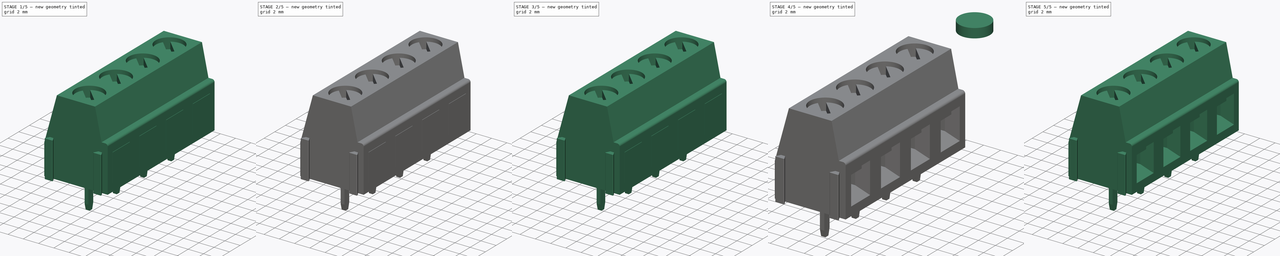
[diagram: build sequence overview — one tinted view per stage of 5, left to right]
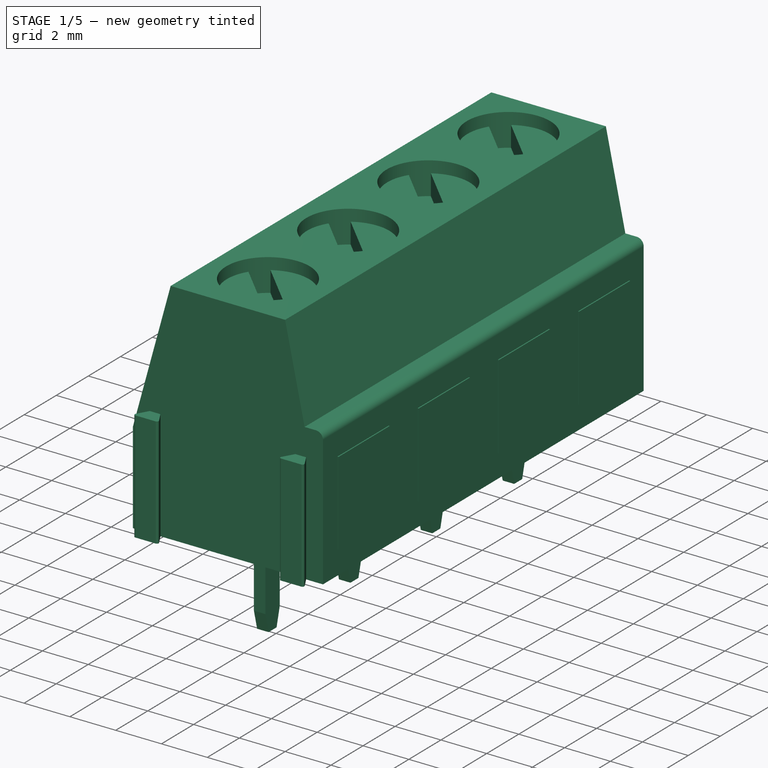
[diagram: stage 1 of 5 — iso view after this stage's code; geometry added in this stage tinted green]
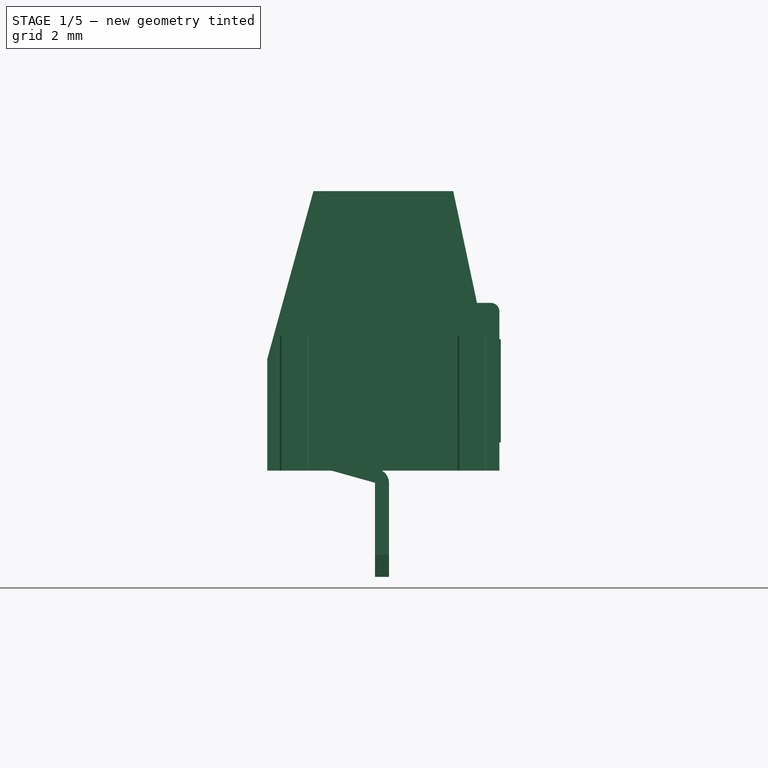
[diagram: stage 1 of 5 — front view after this stage's code; geometry added in this stage tinted green]
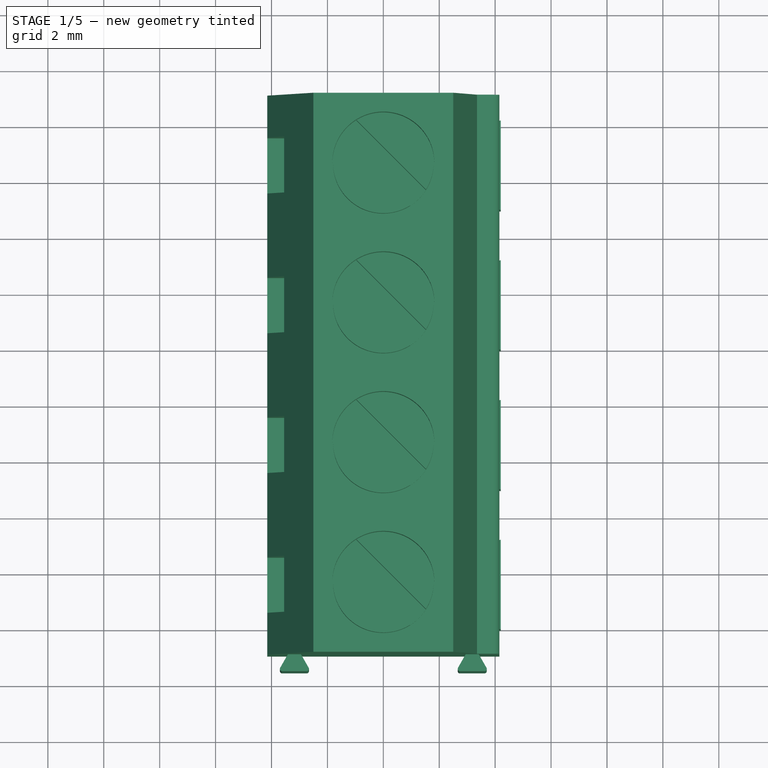
[diagram: stage 1 of 5 — top view after this stage's code; geometry added in this stage tinted green]
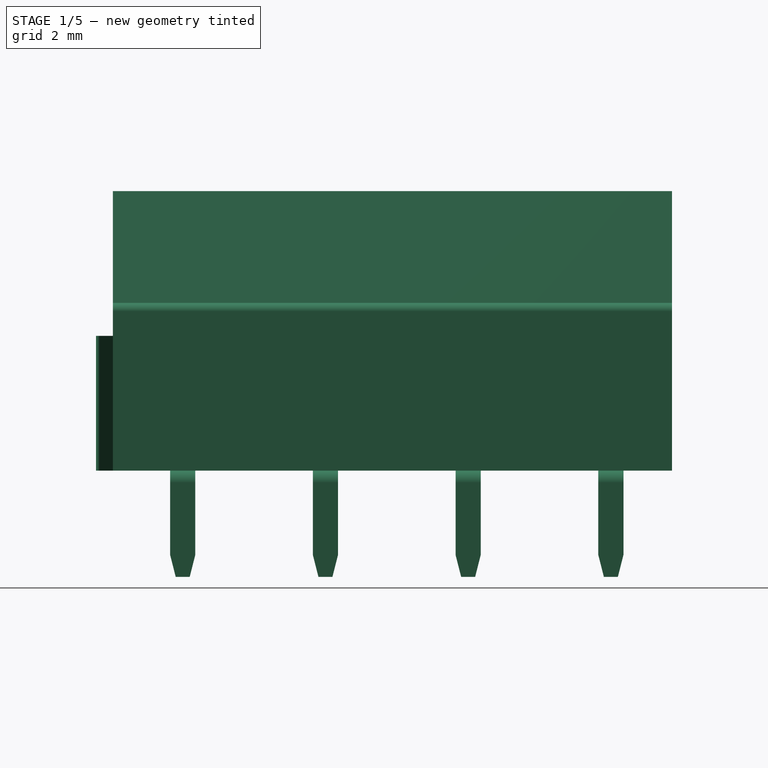
[diagram: stage 1 of 5 — right view after this stage's code; geometry added in this stage tinted green]
FCSTD DOCUMENT  (FreeCAD 0.15R4671 (Git))
Label: pcb-terminal-block-female-1x4
License: All rights reserved
LicenseURL: http://es.wikipedia.org/wiki/Todos_los_derechos_reservados
objects: Sketcher::SketchObject×13, PartDesign::Pad×6, PartDesign::Pocket×5, PartDesign::LinearPattern×3, Part::FeaturePython×3, Part::Feature×3, PartDesign::Mirrored×2, Part::Loft×1, Part::MultiFuse×1, Part::Cut×1, App::DocumentObjectGroup×1, Part::Compound×1
note: 50 computed .brp shape members not serialized (recipe doc carries the construction recipe); baked Part::Feature solids carry a one-line shape summary decoded from their .brp

FEATURE [Sketcher::SketchObject] Sketch002  label="inner-cutout-1-sketch"
  Placement = pos=(0,0,0) rot=(0.57735,0.57735,0.57735;2.0944rad)
  sketch-geometry (4):
    g0: LineSegment StartX=-1.25 StartY=0 StartZ=0 EndX=1.25 EndY=0 EndZ=0
    g1: LineSegment StartX=1.25 StartY=0 StartZ=0 EndX=1.25 EndY=-2.9 EndZ=0
    g2: LineSegment StartX=1.25 StartY=-2.9 StartZ=0 EndX=-1.25 EndY=-2.9 EndZ=0
    g3: LineSegment StartX=-1.25 StartY=-2.9 StartZ=0 EndX=-1.25 EndY=0 EndZ=0
  constraints (12):
    c: Coincident(g0,g1)
    c: Coincident(g1,g2)
    c: Coincident(g2,g3)
    c: Coincident(g3,g0)
    c: Horizontal(g0)
    c: Horizontal(g2)
    c: Vertical(g1)
    c: Vertical(g3)
    c: Symmetric(g0,g0,g-2)
    c: DistanceX(g0) = 2.5
    c: DistanceY(g1) = -2.9
    c: PointOnObject(g0,g-1)
FEATURE [Sketcher::SketchObject] Sketch003
  Placement = pos=(0,0,0) rot=(0.57735,0.57735,0.57735;2.0944rad)
  sketch-geometry (4):
    g0: LineSegment StartX=-1.25 StartY=0 StartZ=0 EndX=1.25 EndY=0 EndZ=0
    g1: LineSegment StartX=1.25 StartY=0 StartZ=0 EndX=1.25 EndY=-2.9 EndZ=0
    g2: LineSegment StartX=1.25 StartY=-2.9 StartZ=0 EndX=-1.25 EndY=-2.9 EndZ=0
    g3: LineSegment StartX=-1.25 StartY=-2.9 StartZ=0 EndX=-1.25 EndY=0 EndZ=0
  constraints (12):
    c: Coincident(g0,g1)
    c: Coincident(g1,g2)
    c: Coincident(g2,g3)
    c: Coincident(g3,g0)
    c: Horizontal(g0)
    c: Horizontal(g2)
    c: Vertical(g1)
    c: Vertical(g3)
    c: Symmetric(g0,g0,g-2)
    c: DistanceX(g0) = 2.5
    c: DistanceY(g1) = -2.9
    c: PointOnObject(g0,g-1)
FEATURE [PartDesign::Pad] Pad001  label="inner-cutout-1"
  Length = 4.82
  Length2 = 100
  Placement = pos=(0,0,0) rot=(0.57735,0.57735,0.57735;2.0944rad)
  Reversed = true
  Sketch = -> Sketch002
  Type = 0
FEATURE [Sketcher::SketchObject] Sketch004
  Placement = pos=(1.56,0,0) rot=(0.57735,0.57735,0.57735;2.0944rad)
  sketch-geometry (4):
    g0: LineSegment StartX=-1.6 StartY=0 StartZ=0 EndX=1.6 EndY=0 EndZ=0
    g1: LineSegment StartX=1.6 StartY=0 StartZ=0 EndX=1.6 EndY=-3.7 EndZ=0
    g2: LineSegment StartX=1.6 StartY=-3.7 StartZ=0 EndX=-1.6 EndY=-3.7 EndZ=0
    g3: LineSegment StartX=-1.6 StartY=-3.7 StartZ=0 EndX=-1.6 EndY=0 EndZ=0
  constraints (12):
    c: Coincident(g0,g1)
    c: Coincident(g1,g2)
    c: Coincident(g2,g3)
    c: Coincident(g3,g0)
    c: Horizontal(g0)
    c: Horizontal(g2)
    c: Vertical(g1)
    c: Vertical(g3)
    c: Symmetric(g0,g0,g-2)
    c: DistanceX(g0) = 3.2
    c: DistanceY(g1) = -3.7
    c: PointOnObject(g0,g-1)
FEATURE [Part::Loft] Loft  label="inner-cutout-2"
  Closed = false
  Ruled = false
  Sections = -> [Sketch003,Sketch004]
  Solid = true
FEATURE [Part::MultiFuse] Fusion  label="inner-cutout"
  Placement = pos=(2.63795,-12.4994,4.7) rot=(0,0,1;0rad)
  Shapes = -> [Pad001,Loft]
FEATURE [Part::FeaturePython] Array  label="inner-cutout-array"  # Draft array (typed FeaturePython)
  Angle = 360
  ArrayType = 0
  Axis = (0,0,1)
  Base = -> Fusion
  Center = (0,0,0)
  IntervalX = (1,0,0)
  IntervalY = (0,5,0)
  IntervalZ = (0,0,1)
  NumberPolar = 1
  NumberX = 1
  NumberY = 4
  NumberZ = 1
FEATURE [App::DocumentObjectGroup] Group  label="body-src"
  Group = -> [Pad,Pocket,LinearPattern,Fusion,Pocket001,Mirrored,Pad002,Mirrored001,Sketch007,Pocket002,LinearPattern001,Cut,Pad003,Array001,Pad004,Array002,Pad005,LinearPattern002]
FEATURE [Part::Feature] Array003  label="pins001"
  shape: bbox 2.05 x 16.22 x 3.8 mm, 40 faces, 4 solids (baked)
FEATURE [Part::Feature] Array004  label="screw-caps001"
  shape: bbox 3.6 x 18.6 x 1.1 mm, 28 faces, 4 solids (baked)
FEATURE [Part::Feature] LinearPattern003  label="terminal-body"
  shape: bbox 8.348 x 20.6 x 10 mm, 110 faces (baked)
FEATURE [Part::Compound] Compound  label="pcb-terminal-block-female-1x4"
  Links = -> [Array003,Array004,LinearPattern003]
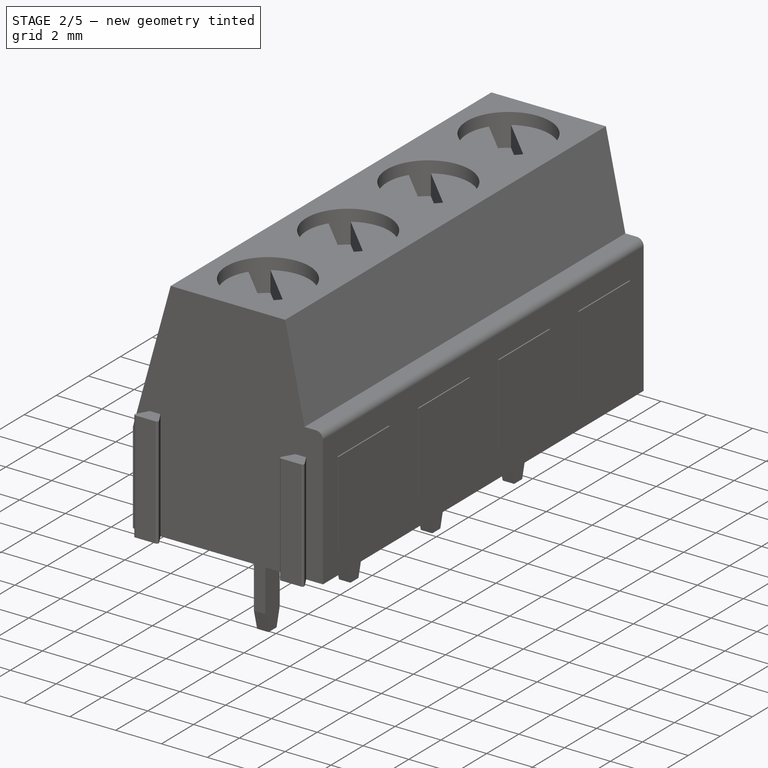
[diagram: stage 2 of 5 — iso view after this stage's code; geometry added in this stage tinted green]
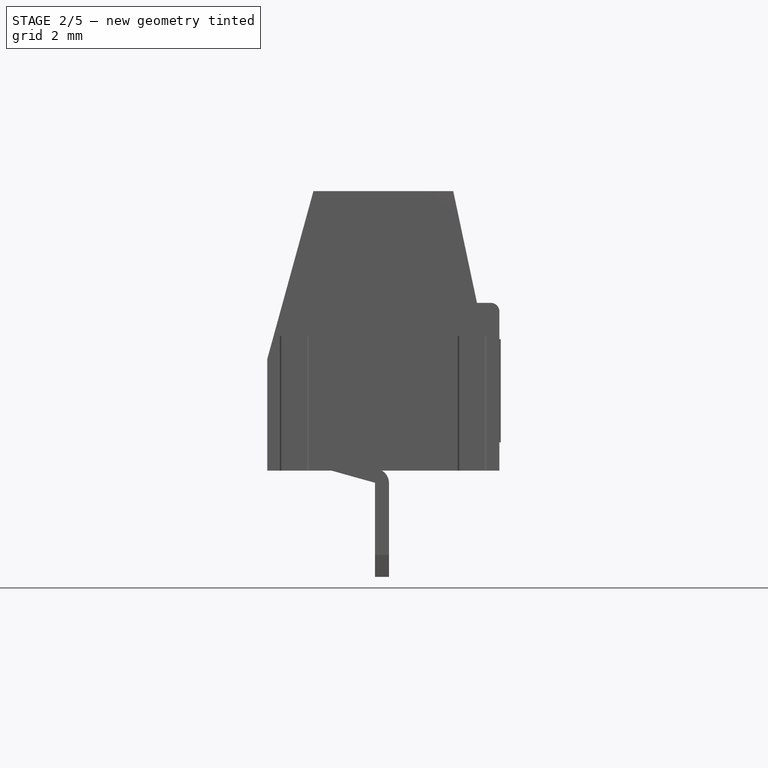
[diagram: stage 2 of 5 — front view after this stage's code; geometry added in this stage tinted green]
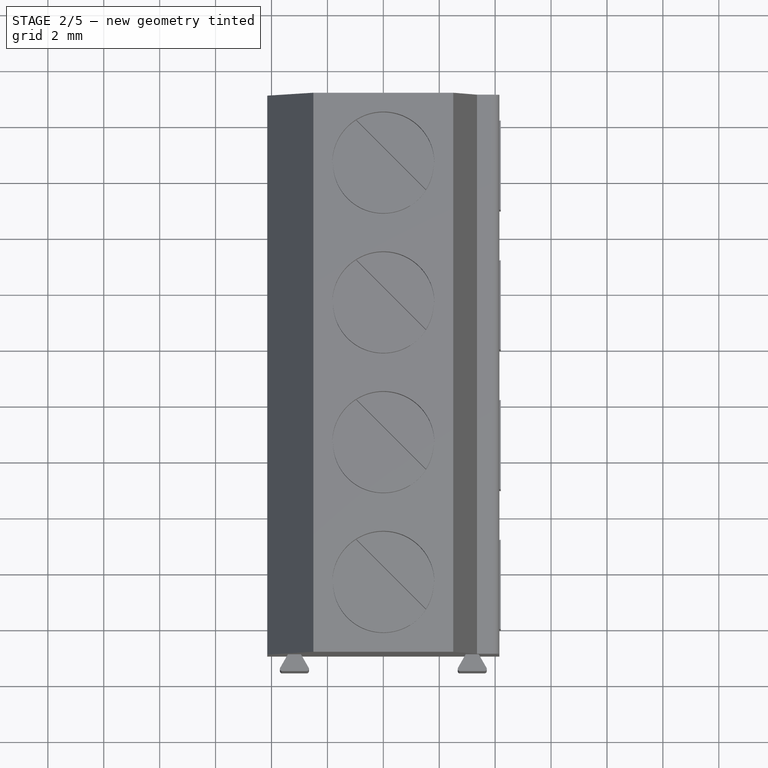
[diagram: stage 2 of 5 — top view after this stage's code; geometry added in this stage tinted green]
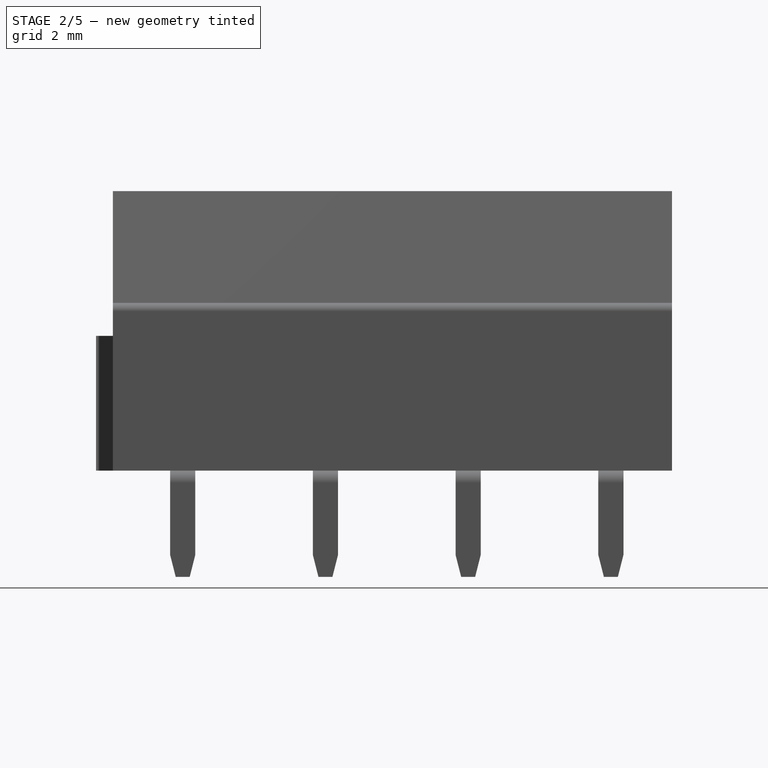
[diagram: stage 2 of 5 — right view after this stage's code; geometry added in this stage tinted green]
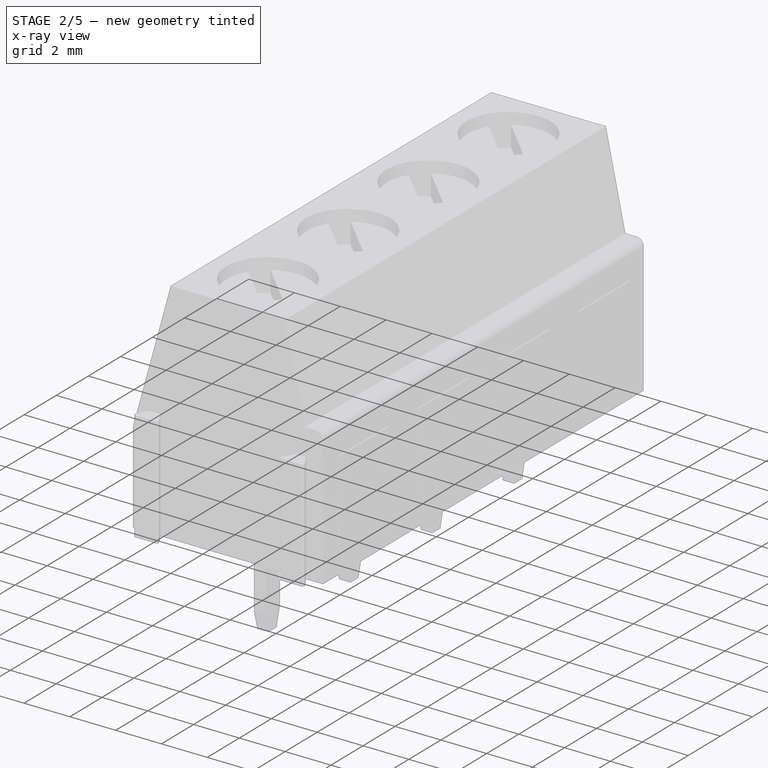
[diagram: stage 2 of 5 — x-ray composite at the iso view; earlier geometry ghosted, this stage's added geometry solid]
FEATURE [Sketcher::SketchObject] Sketch  label="main-body-sketch"
  Placement = pos=(0,-5,0) rot=(1,0,0;1.5708rad)
  sketch-geometry (8):
    g0: LineSegment StartX=4.15 StartY=0 StartZ=0 EndX=-4.15 EndY=0 EndZ=0
    g1: LineSegment StartX=-4.15 StartY=0 StartZ=0 EndX=-4.15 EndY=4 EndZ=0
    g2: LineSegment StartX=-4.15 StartY=4 StartZ=0 EndX=-2.5 EndY=10 EndZ=0
    g3: LineSegment StartX=-2.5 StartY=10 StartZ=0 EndX=2.5 EndY=10 EndZ=0
    g4: LineSegment StartX=2.5 StartY=10 StartZ=0 EndX=3.35 EndY=6 EndZ=0
    g5: LineSegment StartX=3.35 StartY=6 StartZ=0 EndX=3.85 EndY=6 EndZ=0
    g6: LineSegment StartX=4.15 StartY=5.7 StartZ=0 EndX=4.15 EndY=0 EndZ=0
    g7: ArcOfCircle CenterX=3.85 CenterY=5.7 CenterZ=0 NormalX=0 NormalY=0 NormalZ=1 Radius=0.3 StartAngle=0 EndAngle=1.5708
  constraints (23):
    c: Horizontal(g0)
    c: Coincident(g0,g1)
    c: Vertical(g1)
    c: Coincident(g1,g2)
    c: Coincident(g2,g3)
    c: Horizontal(g3)
    c: Coincident(g3,g4)
    c: Coincident(g4,g5)
    c: Horizontal(g5)
    c: Coincident(g6,g0)
    c: Vertical(g6)
    c: PointOnObject(g0,g-1)
    c: Symmetric(g0,g0,g-2)
    c: DistanceX(g0) = -8.3
    c: Symmetric(g2,g3,g-2)
    c: DistanceX(g3) = 5
    c: DistanceY(g2,g0) = -10
    c: DistanceY(g1) = 4
    c: DistanceX(g4,g0) = 0.8
    c: Tangent(g5,g7)
    c: Tangent(g6,g7)
    c: Radius(g7) = 0.3
    c: DistanceY(g4,g0) = -6
FEATURE [PartDesign::Pad] Pad  label="main-body"
  Length = 20
  Length2 = 100
  Midplane = true
  Placement = pos=(0,-5,0) rot=(1,0,0;1.5708rad)
  Sketch = -> Sketch
  Type = 0
FEATURE [Sketcher::SketchObject] Sketch001  label="top-hole-sketch"
  ExternalGeometry = -> [Pad]
  Placement = pos=(0,-5,10) rot=(0,0,1;3.14159rad)
  Support = -> Pad [Face4]
  sketch-geometry (1):
    g0: Circle CenterX=0 CenterY=7.5 CenterZ=0 NormalX=0 NormalY=0 NormalZ=1 Radius=1.825
  constraints (3):
    c: Radius(g0) = 1.825
    c: PointOnObject(g0,g-2)
    c: DistanceY(g0,g-3) = 2.5
FEATURE [PartDesign::Pocket] Pocket  label="top-hole"
  Length = 1.6
  Placement = pos=(0,-5,0) rot=(1,0,0;1.5708rad)
  Sketch = -> Sketch001
  Type = 0
FEATURE [PartDesign::LinearPattern] LinearPattern  label="top-holes"
  Direction = -> Sketch001 [V_Axis]
  Length = 15
  Occurrences = 4
  Originals = -> [Pocket]
  Placement = pos=(0,-5,0) rot=(1,0,0;1.5708rad)
  Reversed = true
FEATURE [Sketcher::SketchObject] Sketch005  label="side-slot-master-sketch-1"
  ExternalGeometry = -> [LinearPattern]
  Placement = pos=(0,-5,0) rot=(1,0,0;3.14159rad)
  Support = -> LinearPattern [Face1]
  sketch-geometry (9):
    g0: LineSegment StartX=-3.415 StartY=-10 StartZ=0 EndX=-3.68939 EndY=-9.51739 EndZ=0
    g1: LineSegment StartX=-3.61985 StartY=-9.39785 StartZ=0 EndX=-2.73985 EndY=-9.39785 EndZ=0
    g2: LineSegment StartX=-2.67012 StartY=-9.51785 StartZ=0 EndX=-2.945 EndY=-10.0001 EndZ=0
    g3: LineSegment [constr] StartX=-3.17982 StartY=-9.39785 StartZ=0 EndX=-3.18 EndY=-9.99785 EndZ=0
    g4: ArcOfCircle CenterX=-3.61985 CenterY=-9.47785 CenterZ=0 NormalX=0 NormalY=0 NormalZ=1 Radius=0.08 StartAngle=1.5708 EndAngle=3.65857
    g5: ArcOfCircle CenterX=-2.73985 CenterY=-9.47811 CenterZ=0 NormalX=0 NormalY=0 NormalZ=1 Radius=0.0802595 StartAngle=5.76515 EndAngle=7.85398
    g6: LineSegment StartX=-2.945 StartY=-10.0001 StartZ=0 EndX=-2.945 EndY=-10.1 EndZ=0
    g7: LineSegment StartX=-2.945 StartY=-10.1 StartZ=0 EndX=-3.415 EndY=-10.1 EndZ=0
    g8: LineSegment StartX=-3.415 StartY=-10.1 StartZ=0 EndX=-3.415 EndY=-10 EndZ=0
  constraints (22):
    c: Horizontal(g1)
    c: PointOnObject(g3,g1)
    c: Symmetric(g0,g2,g3)
    c: PointOnObject(g0,g-3)
    c: DistanceX(g-1,g2) = -2.945
    c: DistanceY(g3) = -0.6
    c: Tangent(g0,g4)
    c: Tangent(g1,g4)
    c: Tangent(g1,g5)
    c: Tangent(g2,g5)
    c: Symmetric(g4,g5,g3)
    c: DistanceX(g1) = 0.88
    c: Radius(g4) = 0.08
    c: Coincident(g6,g7)
    c: Coincident(g7,g8)
    c: Horizontal(g7)
    c: Vertical(g6)
    c: Vertical(g8)
    c: Coincident(g8,g0)
    c: Coincident(g6,g2)
    c: DistanceX(g7) = -0.47
    c: DistanceY(g8) = 0.1
FEATURE [PartDesign::Pocket] Pocket001  label="side-slot-master-1"
  Length = 5.2
  Placement = pos=(0,-5,0) rot=(1,0,0;1.5708rad)
  Sketch = -> Sketch005
  Type = 0
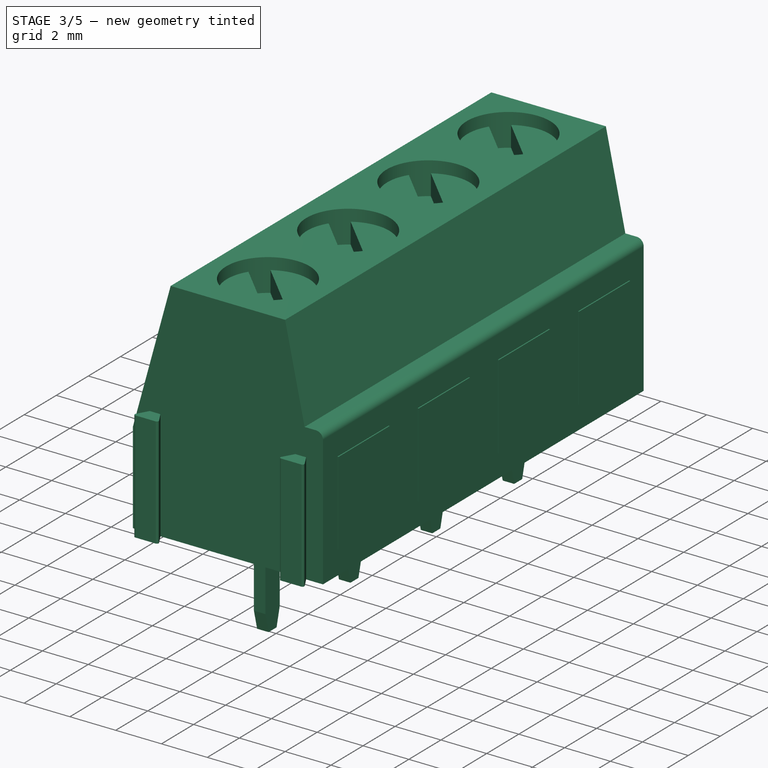
[diagram: stage 3 of 5 — iso view after this stage's code; geometry added in this stage tinted green]
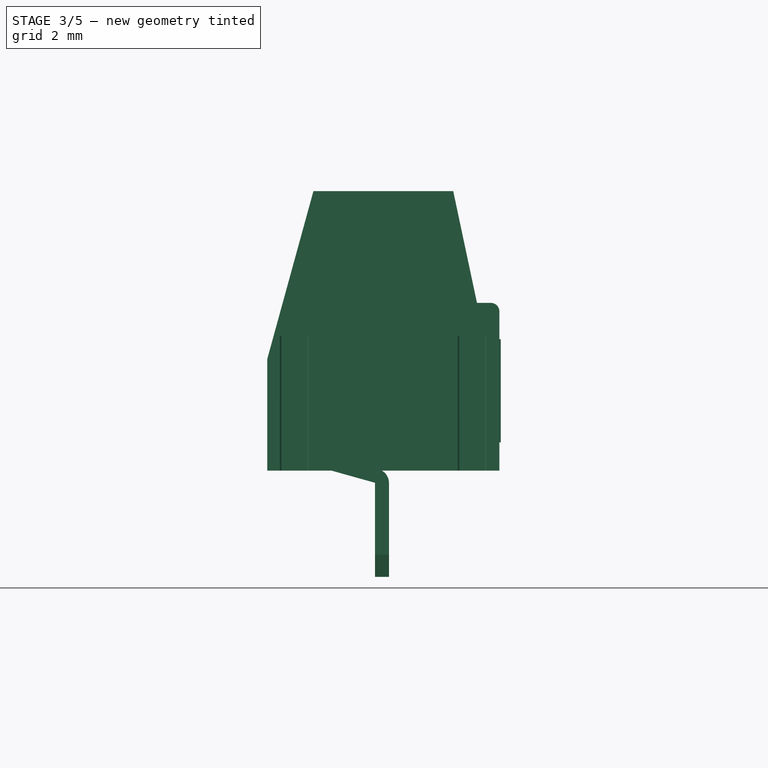
[diagram: stage 3 of 5 — front view after this stage's code; geometry added in this stage tinted green]
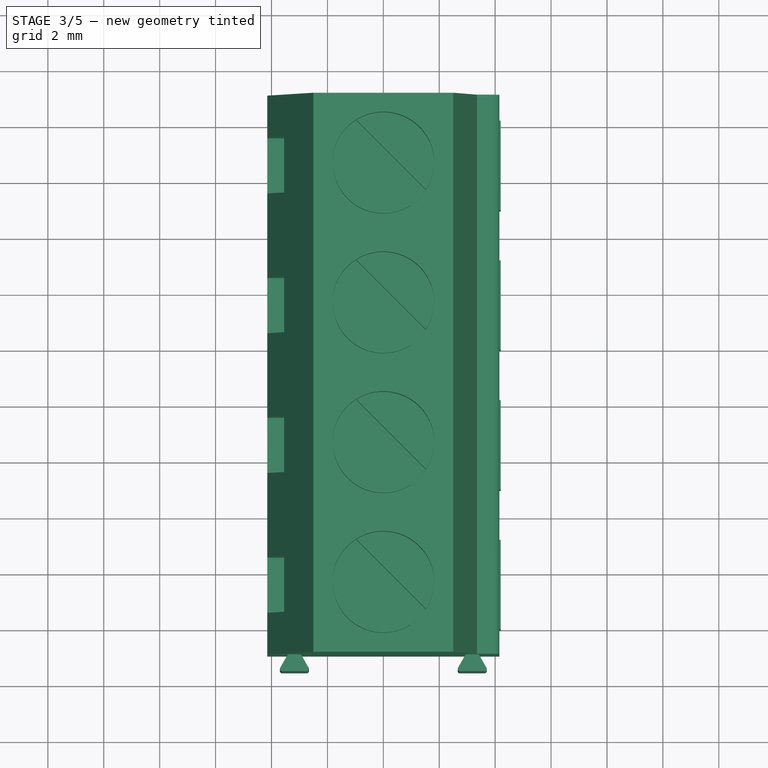
[diagram: stage 3 of 5 — top view after this stage's code; geometry added in this stage tinted green]
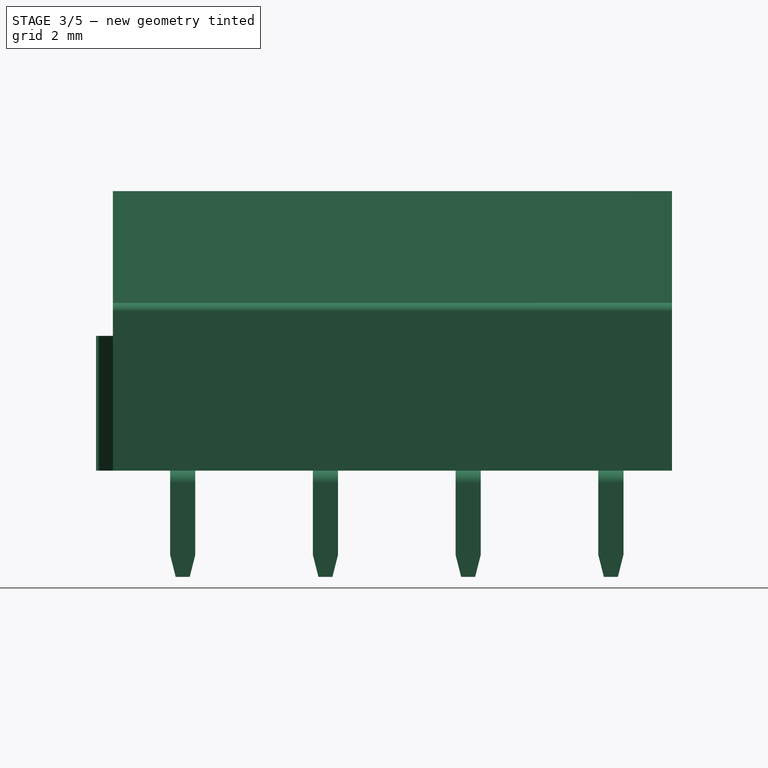
[diagram: stage 3 of 5 — right view after this stage's code; geometry added in this stage tinted green]
FEATURE [PartDesign::Mirrored] Mirrored  label="side-slot-1"
  MirrorPlane = -> Sketch005 [V_Axis]
  Originals = -> [Pocket001]
  Placement = pos=(0,-5,0) rot=(1,0,0;1.5708rad)
FEATURE [Sketcher::SketchObject] Sketch006  label="side-slot-master-sketch-2"
  ExternalGeometry = -> [Mirrored]
  Placement = pos=(0,-5,0) rot=(1,0,0;3.14159rad)
  Support = -> Mirrored [Face1]
  sketch-geometry (7):
    g0: LineSegment StartX=-3.62 StartY=10.6 StartZ=0 EndX=-2.74 EndY=10.6 EndZ=0
    g1: LineSegment StartX=-2.67054 StartY=10.4803 StartZ=0 EndX=-2.945 EndY=10 EndZ=0
    g2: LineSegment StartX=-2.945 StartY=10 StartZ=0 EndX=-3.415 EndY=10 EndZ=0
    g3: LineSegment StartX=-3.415 StartY=10 StartZ=0 EndX=-3.68946 EndY=10.4803 EndZ=0
    g4: LineSegment [constr] StartX=-3.18 StartY=10.6 StartZ=0 EndX=-3.18 EndY=10 EndZ=0
    g5: ArcOfCircle CenterX=-3.62 CenterY=10.52 CenterZ=0 NormalX=0 NormalY=0 NormalZ=1 Radius=0.08 StartAngle=1.5708 EndAngle=3.66073
    g6: ArcOfCircle CenterX=-2.74 CenterY=10.52 CenterZ=0 NormalX=0 NormalY=0 NormalZ=1 Radius=0.08 StartAngle=5.76404 EndAngle=7.85398
  constraints (19):
    c: Coincident(g1,g2)
    c: Coincident(g2,g3)
    c: Horizontal(g2)
    c: Horizontal(g0)
    c: DistanceX(g-1,g1) = -2.945
    c: DistanceX(g2) = -0.47
    c: Vertical(g4)
    c: PointOnObject(g4,g2)
    c: PointOnObject(g4,g0)
    c: Symmetric(g2,g1,g4)
    c: PointOnObject(g2,g-3)
    c: DistanceY(g4) = -0.6
    c: Tangent(g0,g5)
    c: Tangent(g3,g5)
    c: Tangent(g0,g6)
    c: Tangent(g1,g6)
    c: Symmetric(g5,g6,g4)
    c: DistanceX(g0) = 0.88
    c: Radius(g5) = 0.08
FEATURE [PartDesign::Pad] Pad002  label="side-slot-master-2"
  Length = 4.82
  Length2 = 100
  Placement = pos=(0,-5,0) rot=(1,0,0;1.5708rad)
  Reversed = true
  Sketch = -> Sketch006
  Type = 0
FEATURE [PartDesign::Mirrored] Mirrored001  label="side-slot-2"
  MirrorPlane = -> Sketch006 [V_Axis]
  Originals = -> [Pad002]
  Placement = pos=(0,-5,0) rot=(1,0,0;1.5708rad)
FEATURE [Sketcher::SketchObject] Sketch007  label="cutout-3-sketch"
  ExternalGeometry = -> [Mirrored001]
  Placement = pos=(-4.15,-5,0) rot=(0.707107,0,-0.707107;3.14159rad)
  Support = -> Mirrored001 [Face10]
  sketch-geometry (4):
    g0: LineSegment StartX=-6.18 StartY=8.5 StartZ=0 EndX=-2.3 EndY=8.5 EndZ=0
    g1: LineSegment StartX=-2.3 StartY=8.5 StartZ=0 EndX=-2.3 EndY=6.5 EndZ=0
    g2: LineSegment StartX=-2.3 StartY=6.5 StartZ=0 EndX=-6.18 EndY=6.5 EndZ=0
    g3: LineSegment StartX=-6.18 StartY=6.5 StartZ=0 EndX=-6.18 EndY=8.5 EndZ=0
  constraints (12):
    c: Coincident(g0,g1)
    c: Coincident(g1,g2)
    c: Coincident(g2,g3)
    c: Coincident(g3,g0)
    c: Horizontal(g0)
    c: Horizontal(g2)
    c: Vertical(g1)
    c: Vertical(g3)
    c: DistanceY(g1) = -2
    c: DistanceX(g0) = 3.88
    c: DistanceX(g-3,g0) = -2.3
    c: DistanceY(g0,g-3) = 1.5
FEATURE [PartDesign::Pocket] Pocket002  label="cutout-3"
  Length = 0.6
  Placement = pos=(0,-5,0) rot=(1,0,0;1.5708rad)
  Sketch = -> Sketch007
  Type = 0
FEATURE [PartDesign::LinearPattern] LinearPattern001  label="back-cutout"
  Direction = -> Sketch007 [V_Axis]
  Length = 15
  Occurrences = 4
  Originals = -> [Pocket002]
  Placement = pos=(0,-5,0) rot=(1,0,0;1.5708rad)
  Reversed = true
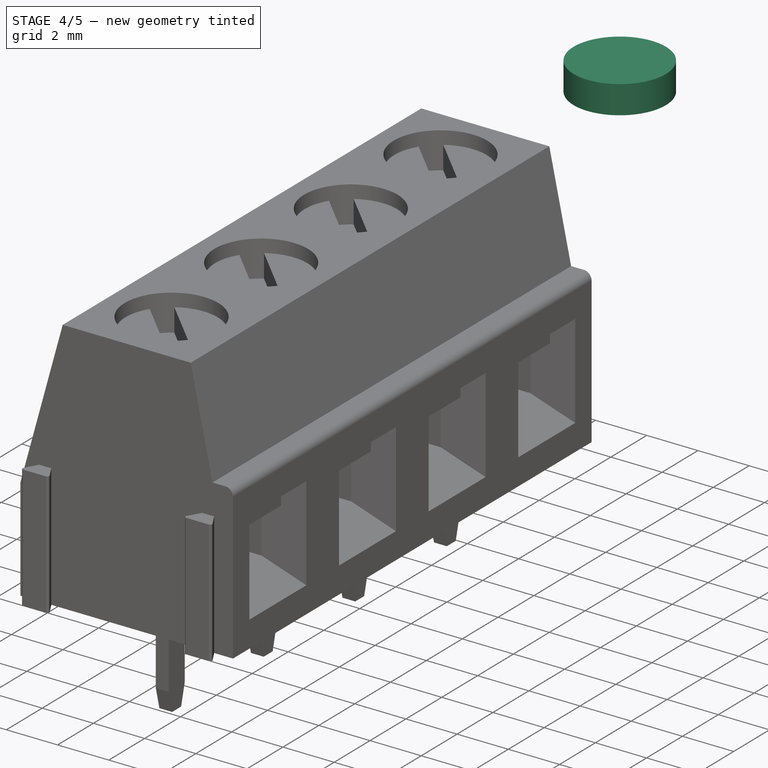
[diagram: stage 4 of 5 — iso view after this stage's code; geometry added in this stage tinted green]
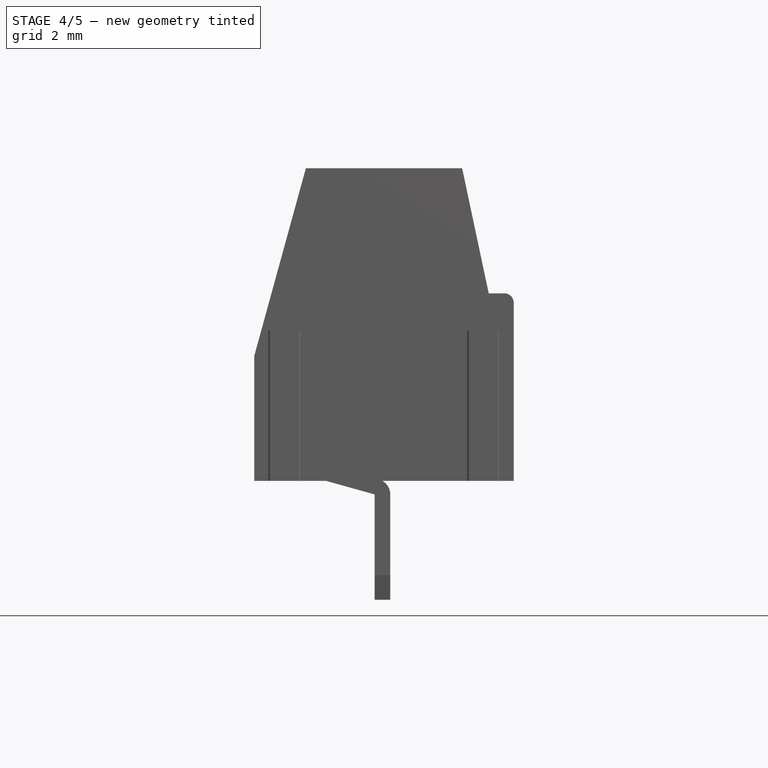
[diagram: stage 4 of 5 — front view after this stage's code; geometry added in this stage tinted green]
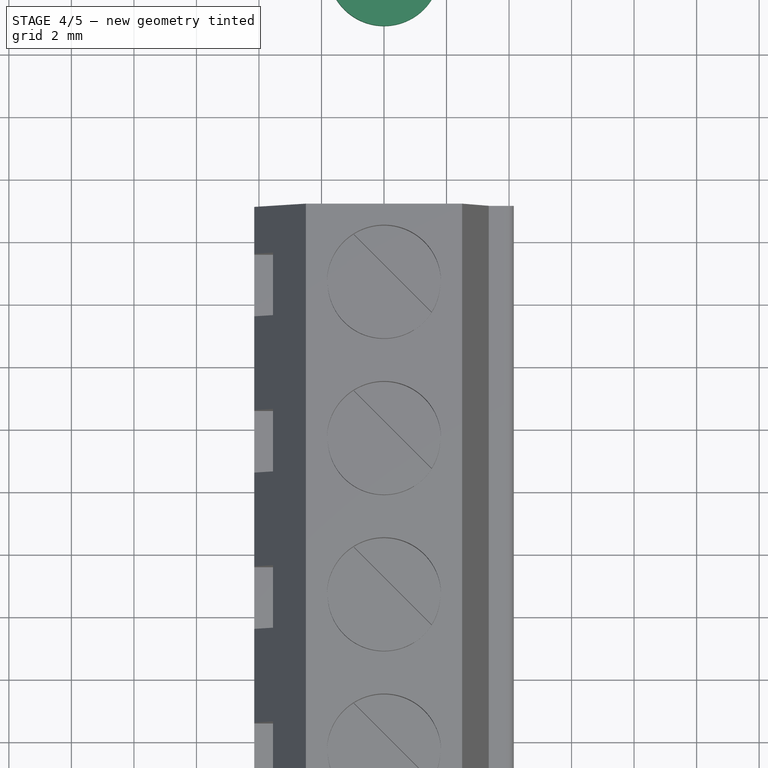
[diagram: stage 4 of 5 — top view after this stage's code; geometry added in this stage tinted green]
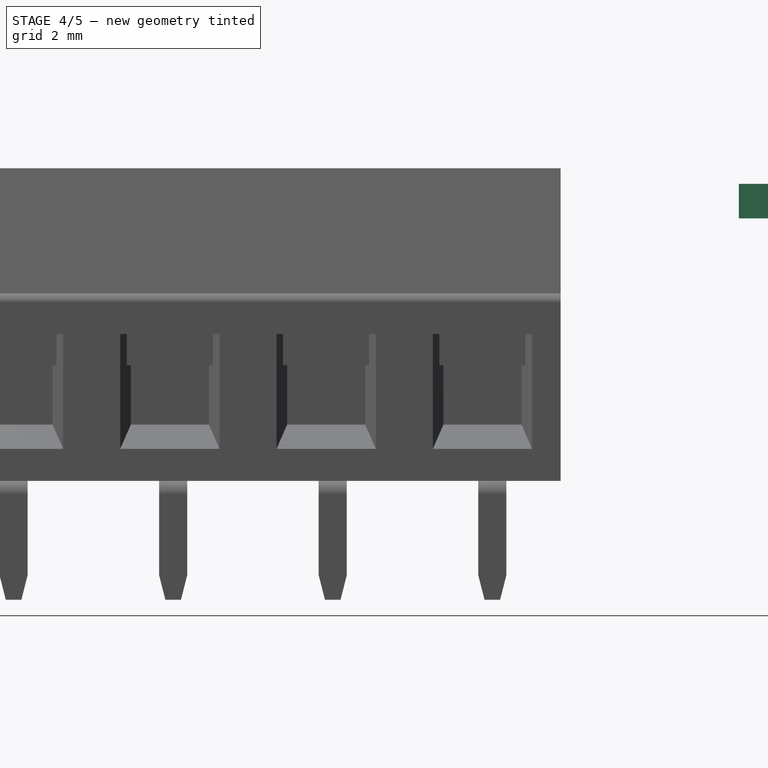
[diagram: stage 4 of 5 — right view after this stage's code; geometry added in this stage tinted green]
FEATURE [Part::Cut] Cut  label="frontal-cutout"
  Base = -> LinearPattern001
  Tool = -> Array
FEATURE [Sketcher::SketchObject] Sketch011  label="screw-cap-sketch"
  Placement = pos=(0,9.99812,8.4) rot=(0,0,1;0rad)
  sketch-geometry (1):
    g0: Circle CenterX=0 CenterY=2.50188 CenterZ=0 NormalX=0 NormalY=0 NormalZ=1 Radius=1.8
  constraints (2):
    c: PointOnObject(g0,g-2)
    c: Radius(g0) = 1.8
FEATURE [PartDesign::Pad] Pad004  label="screw-cap-body"
  Length = 1.1
  Length2 = 100
  Placement = pos=(0,9.99812,8.4) rot=(0,0,1;0rad)
  Sketch = -> Sketch011
  Type = 0
FEATURE [PartDesign::Pad] Pad005
  Length = 5.5
  Length2 = 100
  Sketch = -> Sketch008
  Type = 0
FEATURE [PartDesign::LinearPattern] LinearPattern002
  Direction = -> Sketch008 [H_Axis]
  Length = 15
  Occurrences = 4
  Originals = -> [Pad005]
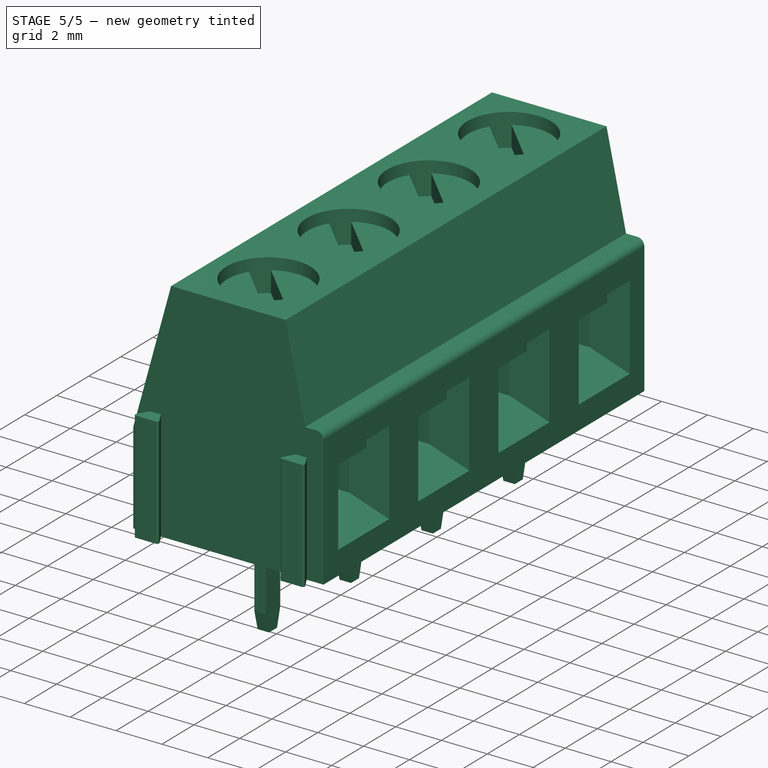
[diagram: stage 5 of 5 — iso view after this stage's code; geometry added in this stage tinted green]
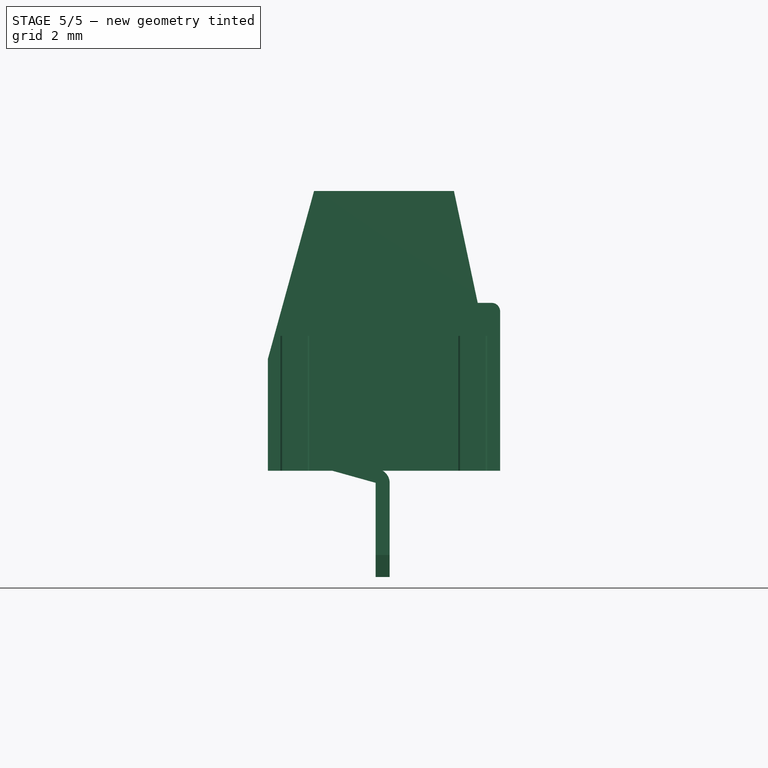
[diagram: stage 5 of 5 — front view after this stage's code; geometry added in this stage tinted green]
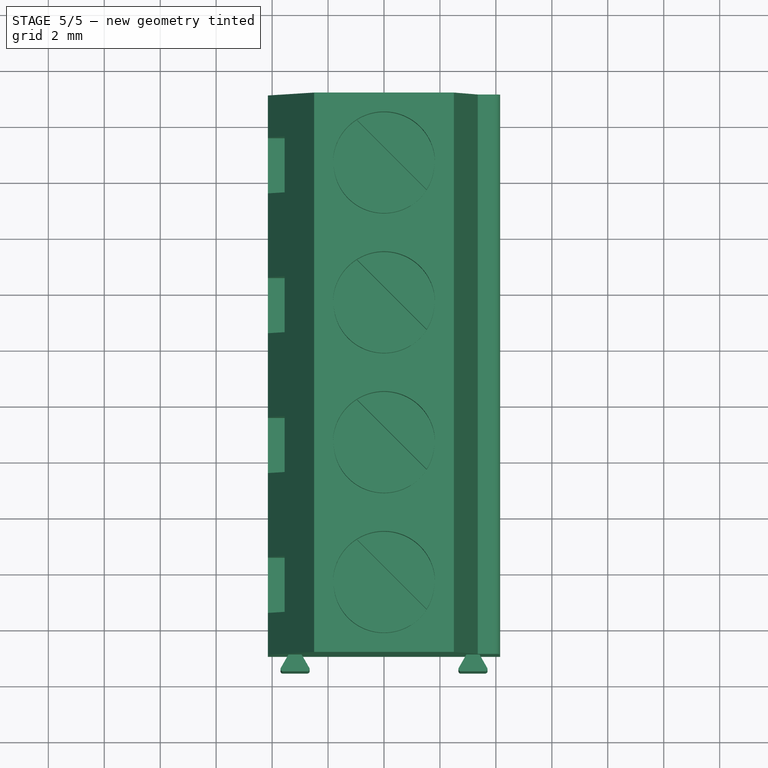
[diagram: stage 5 of 5 — top view after this stage's code; geometry added in this stage tinted green]
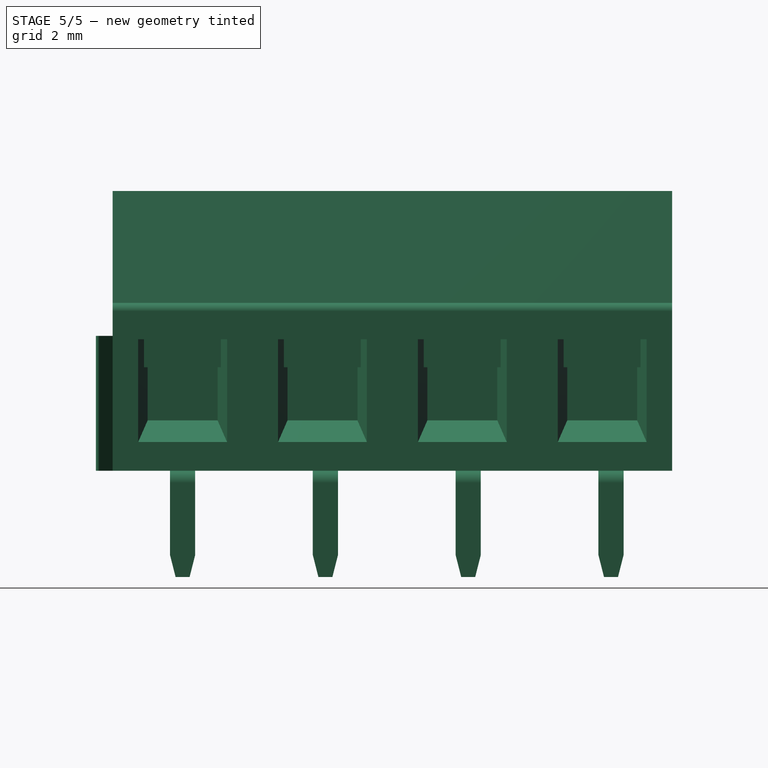
[diagram: stage 5 of 5 — right view after this stage's code; geometry added in this stage tinted green]
FEATURE [Sketcher::SketchObject] Sketch008
  ExternalGeometry = -> [Cut]
  Placement = pos=(-2.18205,0,0) rot=(0.57735,0.57735,0.57735;2.0944rad)
  Support = -> Cut [Face97]
  sketch-geometry (4):
    g0: LineSegment StartX=-13.88 StartY=4.7 StartZ=0 EndX=-11.13 EndY=4.7 EndZ=0
    g1: LineSegment StartX=-11.13 StartY=4.7 StartZ=0 EndX=-11.13 EndY=3.7 EndZ=0
    g2: LineSegment StartX=-11.13 StartY=3.7 StartZ=0 EndX=-13.88 EndY=3.7 EndZ=0
    g3: LineSegment StartX=-13.88 StartY=3.7 StartZ=0 EndX=-13.88 EndY=4.7 EndZ=0
  constraints (10):
    c: Coincident(g0,g1)
    c: Coincident(g1,g2)
    c: Coincident(g2,g3)
    c: Coincident(g3,g0)
    c: Horizontal(g0)
    c: Horizontal(g2)
    c: Vertical(g1)
    c: Vertical(g3)
    c: DistanceY(g1) = -1
    c: DistanceX(g2) = -2.75
FEATURE [Sketcher::SketchObject] Sketch009  label="base-pin-main-sketch"
  Placement = pos=(-0.0492754,-12.05,0) rot=(1,0,0;1.5708rad)
  sketch-geometry (6):
    g0: LineSegment StartX=0.25 StartY=-0.433007 StartZ=0 EndX=0.25 EndY=-3.8 EndZ=0
    g1: LineSegment StartX=0.25 StartY=-3.8 StartZ=0 EndX=-0.25 EndY=-3.8 EndZ=0
    g2: LineSegment StartX=-0.25 StartY=-3.8 StartZ=0 EndX=-0.25 EndY=-0.433013 EndZ=0
    g3: LineSegment StartX=-1.8 StartY=0 StartZ=0 EndX=0 EndY=0 EndZ=0
    g4: LineSegment StartX=-1.8 StartY=0 StartZ=0 EndX=-0.25 EndY=-0.433013 EndZ=0
    g5: ArcOfCircle CenterX=-0.25 CenterY=-0.433013 CenterZ=0 NormalX=0 NormalY=0 NormalZ=1 Radius=0.5 StartAngle=1.10115e-05 EndAngle=1.0472
  constraints (17):
    c: Coincident(g0,g1)
    c: Coincident(g1,g2)
    c: Horizontal(g1)
    c: Vertical(g0)
    c: Vertical(g2)
    c: Horizontal(g3)
    c: Coincident(g4,g2)
    c: Coincident(g4,g3)
    c: Coincident(g5,g0)
    c: Coincident(g3,g-1)
    c: Coincident(g5,g-1)
    c: DistanceX(g1) = -0.5
    c: DistanceX(g-1,g3) = -1.8
    c: Coincident(g5,g2)
    c: Symmetric(g1,g0,g-2)
    c: DistanceY(g-1,g0) = -3.8
    c: Radius(g5) = 0.5
FEATURE [PartDesign::Pad] Pad003  label="base-pin-main"
  Length = 0.9
  Length2 = 100
  Placement = pos=(-0.0492754,-12.05,0) rot=(1,0,0;1.5708rad)
  Sketch = -> Sketch009
  Type = 0
FEATURE [Sketcher::SketchObject] Sketch010  label="base-pin-cutout"
  ExternalGeometry = -> [Pad003]
  Placement = pos=(0.200725,-12.05,0) rot=(0.707107,0,0.707107;3.14159rad)
  Support = -> Pad003 [Face1]
  sketch-geometry (10):
    g0: LineSegment StartX=-3.8 StartY=0.7 StartZ=0 EndX=-3.012 EndY=0.9 EndZ=0
    g1: LineSegment [constr] StartX=-3.012 StartY=0.9 StartZ=0 EndX=-3.012 EndY=0 EndZ=0
    g2: LineSegment StartX=-3.8 StartY=0.2 StartZ=0 EndX=-3.012 EndY=0 EndZ=0
    g3: LineSegment [constr] StartX=-3.8 StartY=0.45 StartZ=0 EndX=-3.012 EndY=0.45 EndZ=0
    g4: LineSegment StartX=-3.012 StartY=0 StartZ=0 EndX=-3.012 EndY=-0.3 EndZ=0
    g5: LineSegment StartX=-3.012 StartY=-0.3 StartZ=0 EndX=-4.212 EndY=-0.3 EndZ=0
    g6: LineSegment StartX=-4.212 StartY=-0.3 StartZ=0 EndX=-4.212 EndY=1.2 EndZ=0
    g7: LineSegment StartX=-4.212 StartY=1.2 StartZ=0 EndX=-3.012 EndY=1.2 EndZ=0
    g8: LineSegment StartX=-3.012 StartY=1.2 StartZ=0 EndX=-3.012 EndY=0.9 EndZ=0
    g9: LineSegment StartX=-3.8 StartY=0.7 StartZ=0 EndX=-3.8 EndY=0.2 EndZ=0
  constraints (29):
    c: PointOnObject(g0,g-3)
    c: PointOnObject(g0,g-4)
    c: DistanceX(g0,g0) = 0.788
    c: Vertical(g1)
    c: Coincident(g1,g0)
    c: PointOnObject(g1,g-1)
    c: Coincident(g2,g1)
    c: Horizontal(g3)
    c: PointOnObject(g3,g1)
    c: Symmetric(g0,g1,g3)
    c: Coincident(g4,g5)
    c: Coincident(g5,g6)
    c: Coincident(g6,g7)
    c: Coincident(g7,g8)
    c: Coincident(g8,g0)
    c: Vertical(g8)
    c: Horizontal(g7)
    c: Horizontal(g5)
    c: Coincident(g4,g1)
    c: Vertical(g4)
    c: Vertical(g6)
    c: Vertical(g9)
    c: Coincident(g9,g2)
    c: Coincident(g9,g0)
    c: DistanceY(g9) = -0.5
    c: Symmetric(g0,g2,g3)
    c: DistanceY(g6) = 1.5
    c: DistanceX(g5) = -1.2
    c: Symmetric(g4,g7,g3)
FEATURE [PartDesign::Pocket] Pocket003  label="base-pin-cutout001"
  Length = 5
  Placement = pos=(-0.0492754,-12.05,0) rot=(1,0,0;1.5708rad)
  Sketch = -> Sketch010
  Type = 1
FEATURE [Part::FeaturePython] Array001  label="pins"  # Draft array (typed FeaturePython)
  Angle = 360
  ArrayType = 0
  Axis = (0,0,1)
  Base = -> Pocket003
  Center = (0,0,0)
  IntervalX = (1,0,0)
  IntervalY = (0,5.105,0)
  IntervalZ = (0,0,1)
  NumberPolar = 1
  NumberX = 1
  NumberY = 4
  NumberZ = 1
FEATURE [Sketcher::SketchObject] Sketch012  label="screw-cap-slot-sketch"
  ExternalGeometry = -> [Pad004]
  Placement = pos=(0,9.99812,9.5) rot=(0,0,1;0rad)
  Support = -> Pad004 [Face3]
  sketch-geometry (5):
    g0: LineSegment [constr] StartX=-1.27279 StartY=3.77467 StartZ=0 EndX=1.27279 EndY=1.22909 EndZ=0
    g1: LineSegment StartX=-1.55563 StartY=3.49183 StartZ=0 EndX=-0.989949 EndY=4.05751 EndZ=0
    g2: LineSegment StartX=-0.989949 StartY=4.05751 StartZ=0 EndX=1.55563 EndY=1.51193 EndZ=0
    g3: LineSegment StartX=1.55563 StartY=1.51193 StartZ=0 EndX=0.989949 EndY=0.946243 EndZ=0
    g4: LineSegment StartX=0.989949 StartY=0.946243 StartZ=0 EndX=-1.55563 EndY=3.49183 EndZ=0
  constraints (16):
    c: PointOnObject(g-3,g0)
    c: PointOnObject(g0,g-3)
    c: PointOnObject(g0,g-3)
    c: Coincident(g1,g2)
    c: Coincident(g2,g3)
    c: Coincident(g3,g4)
    c: Coincident(g4,g1)
    c: Angle(g0,g-1) = 0.785398
    c: Parallel(g4,g0)
    c: Parallel(g2,g0)
    c: Perpendicular(g1,g4)
    c: Parallel(g1,g3)
    c: PointOnObject(g0,g1)
    c: PointOnObject(g0,g3)
    c: Symmetric(g1,g1,g0)
    c: Distance(g1) = 0.8
FEATURE [PartDesign::Pocket] Pocket004  label="screw-cap-slot"
  Length = 0.9
  Placement = pos=(0,9.99812,8.4) rot=(0,0,1;0rad)
  Sketch = -> Sketch012
  Type = 0
FEATURE [Part::FeaturePython] Array002  label="screw-caps"  # Draft array (typed FeaturePython)
  Angle = 360
  ArrayType = 0
  Axis = (0,0,1)
  Base = -> Pocket004
  Center = (0,0,0)
  IntervalX = (1,0,0)
  IntervalY = (0,5,0)
  IntervalZ = (0,0,1)
  NumberPolar = 1
  NumberX = 1
  NumberY = 4
  NumberZ = 1
  Placement = pos=(0,-25,0) rot=(0,0,1;0rad)
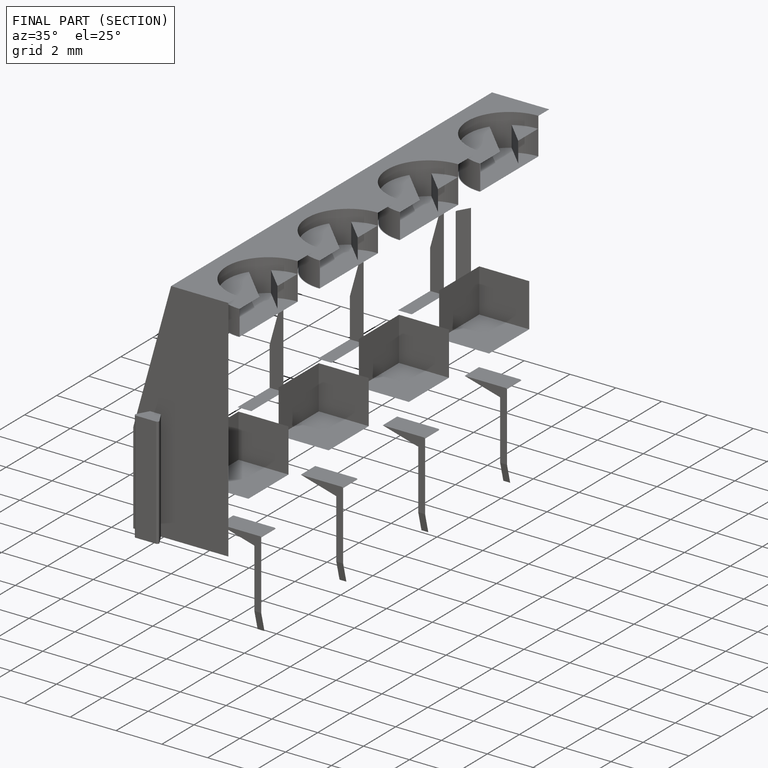
[diagram: finished part — half-section view (interior)]
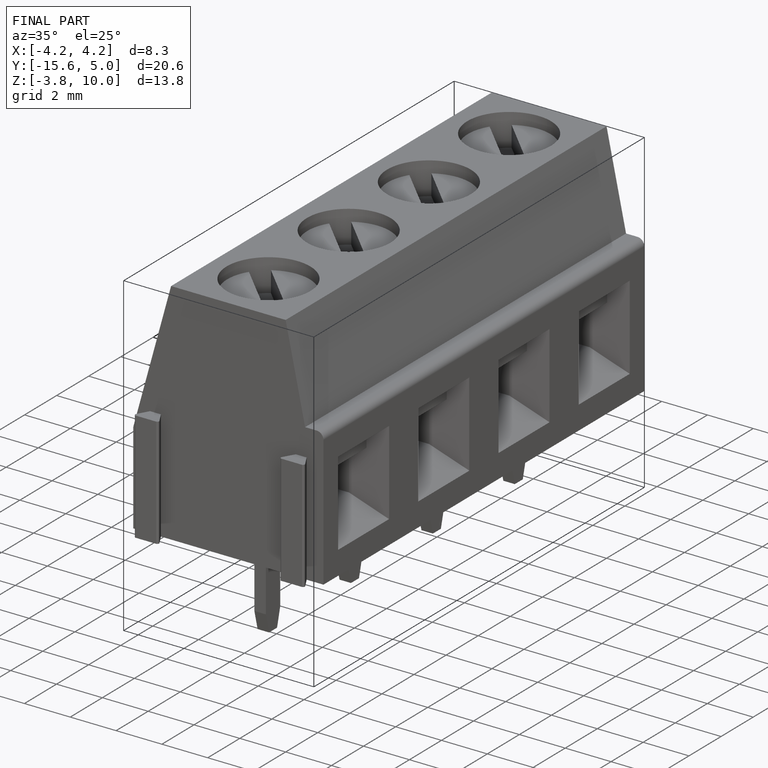
[diagram: finished part — iso view with bounding-box wireframe]
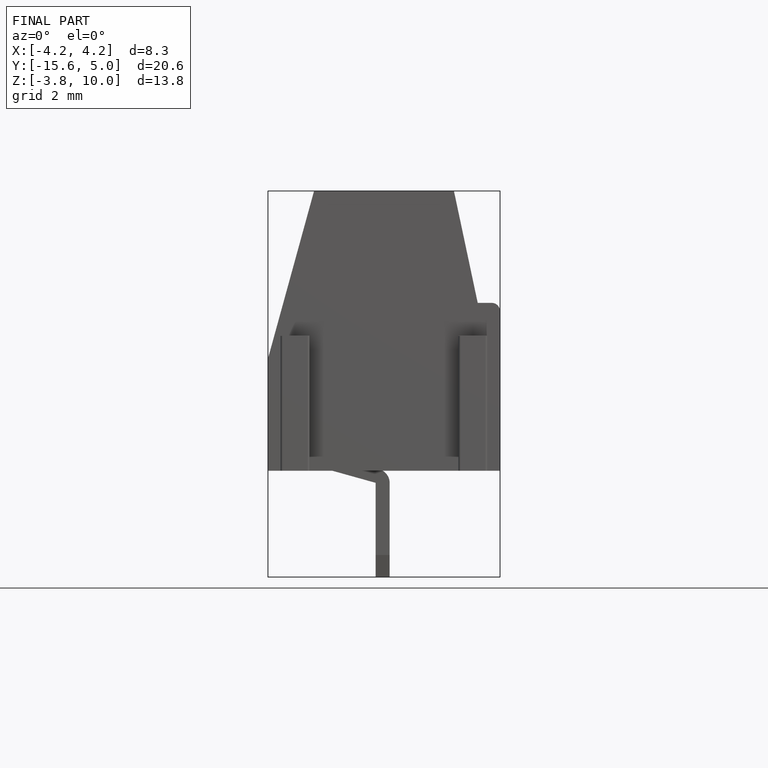
[diagram: finished part — front view with bounding-box wireframe]
